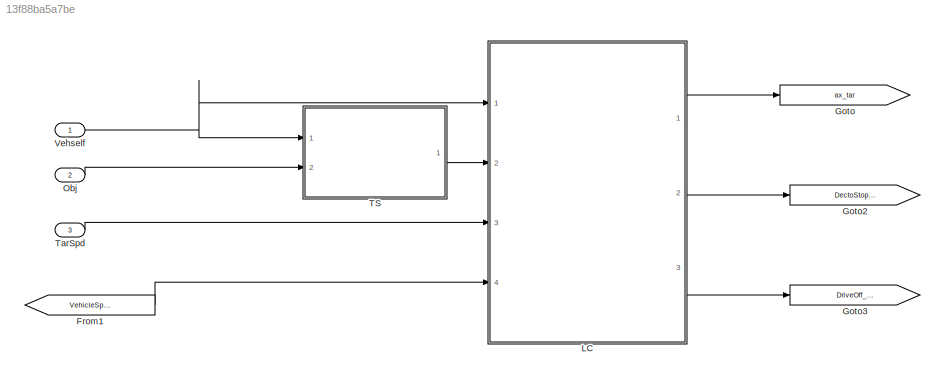
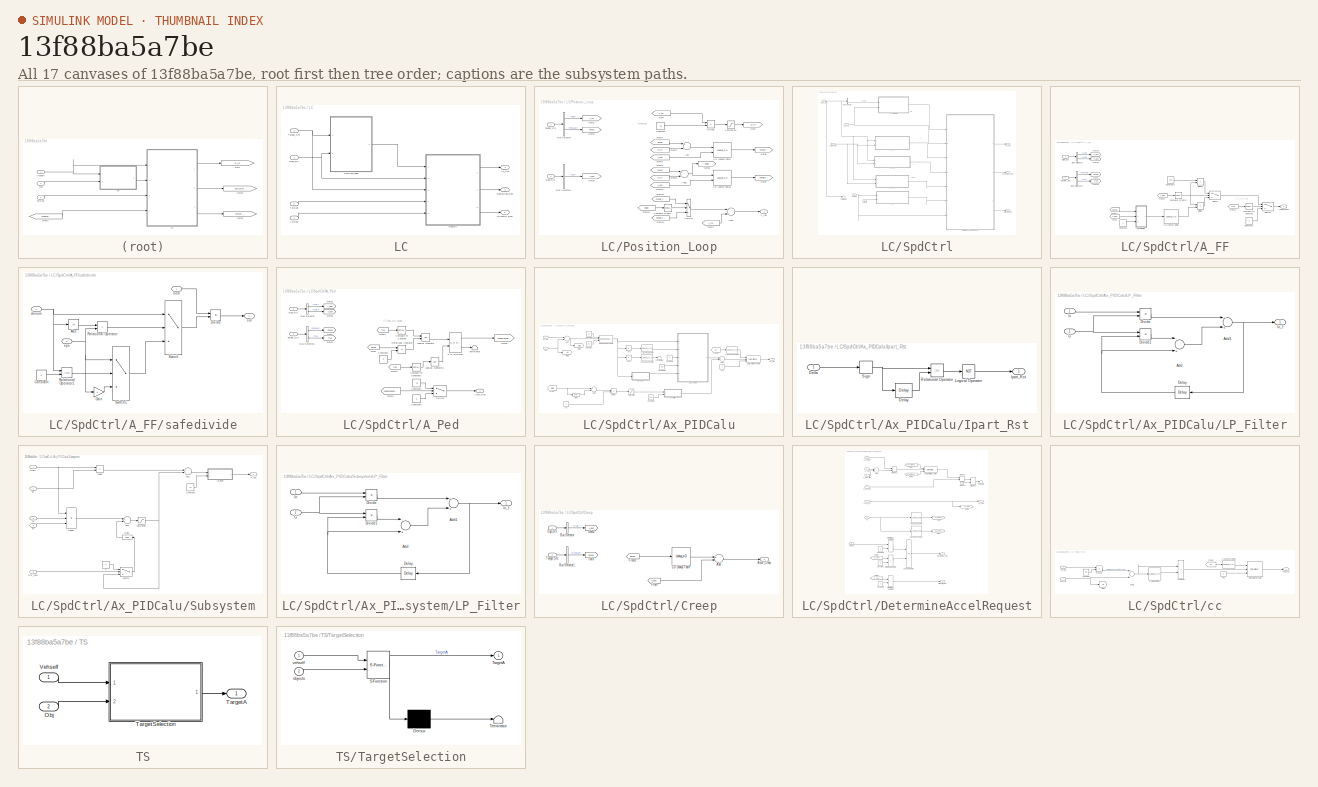
[diagram: thumbnail index - all 17 canvases of the model, root first then tree order]
MODEL slx_13f88ba5a7be
KIND model
CONFIG AbsTol = auto
CONFIG EnableMultiTasking = off
CONFIG FixedStep = auto
CONFIG MaxStep = auto
CONFIG MinStep = auto
CONFIG RelTol = 1e-3
CONFIG SampleTimeConstraint = Unconstrained
CONFIG Solver = VariableStepAuto
CONFIG SolverName = VariableStepAuto
CONFIG StartTime = 0.0
CONFIG StopTime = 10.0
BLOCK [From] From1
  GotoTag = VehicleSpeed
BLOCK [Goto] Goto
  GotoTag = ax_tar
BLOCK [Goto] Goto2
  GotoTag = DectoStop_Req
BLOCK [Goto] Goto3
  GotoTag = DriveOff_Req
BLOCK [SubSystem] LC
  Ports = [4, 3]
  RequestExecContextInheritance = off
BLOCK [Inport] LC/ActSpd
  IconDisplay = Port number
  Port = 4
BLOCK [Outport] LC/Ax_Tar
  IconDisplay = Port number
BLOCK [Outport] LC/DectoStop_Req
  IconDisplay = Port number
  Port = 2
BLOCK [Outport] LC/DriveOff_Req
  IconDisplay = Port number
  Port = 3
BLOCK [Inport] LC/Ego_Sts
  IconDisplay = Port number
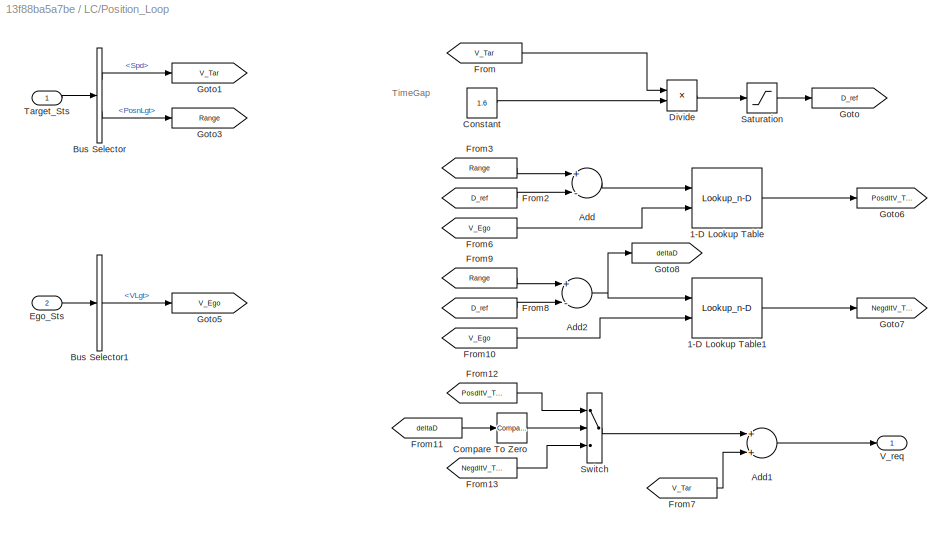
BLOCK [SubSystem] LC/Position_Loop
  Ports = [2, 1]
  RequestExecContextInheritance = off
BLOCK [Lookup_n-D] LC/Position_Loop/1-D Lookup Table
  BreakpointsForDimension1 = single([0,5,10,20,40,60,80,100]);
  BreakpointsForDimension2 = single([0,8.300000190734863]);
  ExtrapMethod = Clip
  InternalRulePriority = Speed
  Ports = [2, 1]
  RndMeth = Simplest
  Table = single(reshape([0,1,1.2,1.8,2.5,2.5,2.5,2.5,0,1,1.2,1.8,3,3,3,3],8,2));
  UseLastTableValue = on
BLOCK [Lookup_n-D] LC/Position_Loop/1-D Lookup Table1
  BreakpointsForDimension1 = single([-7 -5 0])
  BreakpointsForDimension2 = single([0 8.3])
  ExtrapMethod = Clip
  InternalRulePriority = Speed
  Ports = [2, 1]
  RndMeth = Simplest
  Table = single([-0.7 -0.7 0;-1.2 -1.2 0]')
  UseLastTableValue = on
BLOCK [Sum] LC/Position_Loop/Add
  InputSameDT = off
  Inputs = +-
  OutDataTypeStr = Inherit: Inherit via internal rule
  Ports = [2, 1]
  SaturateOnIntegerOverflow = off
BLOCK [Sum] LC/Position_Loop/Add1
  InputSameDT = off
  OutDataTypeStr = Inherit: Inherit via internal rule
  Ports = [2, 1]
  SaturateOnIntegerOverflow = off
BLOCK [Sum] LC/Position_Loop/Add2
  InputSameDT = off
  Inputs = +-
  OutDataTypeStr = Inherit: Inherit via internal rule
  Ports = [2, 1]
  SaturateOnIntegerOverflow = off
BLOCK [BusSelector] LC/Position_Loop/Bus Selector
  OutputAsBus = off
  OutputSignals = Spd,PosnLgt
  Ports = [1, 2]
BLOCK [BusSelector] LC/Position_Loop/Bus Selector1
  OutputAsBus = off
  OutputSignals = VLgt
  Ports = [1, 1]
BLOCK [Reference] LC/Position_Loop/Compare To Zero  REF=simulink/Logic and Bit
Operations/Compare
To Zero
  Ports = [1, 1]
  SourceBlock = simulink/Logic and Bit\nOperations/Compare\nTo Zero
  SourceProductBaseCode = SL
  SourceProductName = Simulink
  SourceType = Compare To Zero
BLOCK [Constant] LC/Position_Loop/Constant
  OutDataTypeStr = single
  Value = 1.6
BLOCK [Product] LC/Position_Loop/Divide
  InputSameDT = off
  Inputs = **
  OutDataTypeStr = Inherit: Inherit via internal rule
  Ports = [2, 1]
  RndMeth = Floor
  SaturateOnIntegerOverflow = off
BLOCK [Inport] LC/Position_Loop/Ego_Sts
  IconDisplay = Port number
  Port = 2
BLOCK [From] LC/Position_Loop/From
  GotoTag = V_Tar
BLOCK [From] LC/Position_Loop/From10
  GotoTag = V_Ego
BLOCK [From] LC/Position_Loop/From11
  GotoTag = deltaD
BLOCK [From] LC/Position_Loop/From12
  GotoTag = PosdltV_Tar
BLOCK [From] LC/Position_Loop/From13
  GotoTag = NegdltV_Tar
BLOCK [From] LC/Position_Loop/From2
  GotoTag = D_ref
BLOCK [From] LC/Position_Loop/From3
  GotoTag = Range
BLOCK [From] LC/Position_Loop/From6
  GotoTag = V_Ego
BLOCK [From] LC/Position_Loop/From7
  GotoTag = V_Tar
BLOCK [From] LC/Position_Loop/From8
  GotoTag = D_ref
BLOCK [From] LC/Position_Loop/From9
  GotoTag = Range
BLOCK [Goto] LC/Position_Loop/Goto
  GotoTag = D_ref
BLOCK [Goto] LC/Position_Loop/Goto1
  GotoTag = V_Tar
BLOCK [Goto] LC/Position_Loop/Goto3
  GotoTag = Range
BLOCK [Goto] LC/Position_Loop/Goto5
  GotoTag = V_Ego
BLOCK [Goto] LC/Position_Loop/Goto6
  GotoTag = PosdltV_Tar
BLOCK [Goto] LC/Position_Loop/Goto7
  GotoTag = NegdltV_Tar
BLOCK [Goto] LC/Position_Loop/Goto8
  GotoTag = deltaD
BLOCK [Saturate] LC/Position_Loop/Saturation
  InputPortMap = u0
  LowerLimit = 5
  Ports = [1, 1]
  UpperLimit = 100
BLOCK [Switch] LC/Position_Loop/Switch
  Criteria = u2 ~= 0
  InputSameDT = off
  SaturateOnIntegerOverflow = off
BLOCK [Inport] LC/Position_Loop/Target_Sts
  IconDisplay = Port number
BLOCK [Outport] LC/Position_Loop/V_req
  IconDisplay = Port number
BLOCK [SubSystem] LC/SpdCtrl
  Ports = [5, 3]
  RequestExecContextInheritance = off
BLOCK [SubSystem] LC/SpdCtrl/A_FF
  Ports = [2, 1]
  RequestExecContextInheritance = off
BLOCK [Lookup_n-D] LC/SpdCtrl/A_FF/1-D Lookup Table
  BreakpointsForDimension1 = single([0 0.8 4])
  InternalRulePriority = Speed
  NumberOfTableDimensions = 1
  Ports = [1, 1]
  RndMeth = Simplest
  Table = single([1.6 0.93 0])
BLOCK [Outport] LC/SpdCtrl/A_FF/A_lead_filted
  IconDisplay = Port number
BLOCK [BusSelector] LC/SpdCtrl/A_FF/Bus Selector
  OutputAsBus = off
  OutputSignals = ALgt,VLgt
  Ports = [1, 2]
BLOCK [BusSelector] LC/SpdCtrl/A_FF/Bus Selector1
  OutputAsBus = off
  OutputSignals = PosnLgt,Typ
  Ports = [1, 2]
BLOCK [Reference] LC/SpdCtrl/A_FF/Compare To Constant  REF=simulink/Logic and Bit
Operations/Compare
To Constant
  Ports = [1, 1]
  SourceBlock = simulink/Logic and Bit\nOperations/Compare\nTo Constant
  SourceProductBaseCode = SL
  SourceProductName = Simulink
  SourceType = Compare To Constant
BLOCK [Reference] LC/SpdCtrl/A_FF/Compare To Zero  REF=simulink/Logic and Bit
Operations/Compare
To Zero
  Ports = [1, 1]
  SourceBlock = simulink/Logic and Bit\nOperations/Compare\nTo Zero
  SourceProductBaseCode = SL
  SourceProductName = Simulink
  SourceType = Compare To Zero
BLOCK [Constant] LC/SpdCtrl/A_FF/Constant
  OutDataTypeStr = single
BLOCK [Constant] LC/SpdCtrl/A_FF/Constant1
  OutDataTypeStr = single
  Value = 0.24
BLOCK [Constant] LC/SpdCtrl/A_FF/Constant2
  OutDataTypeStr = single
  Value = 0
BLOCK [Product] LC/SpdCtrl/A_FF/Divide
  InputSameDT = off
  Inputs = **
  OutDataTypeStr = Inherit: Inherit via internal rule
  Ports = [2, 1]
  RndMeth = Floor
  SaturateOnIntegerOverflow = off
BLOCK [Product] LC/SpdCtrl/A_FF/Divide1
  InputSameDT = off
  Inputs = **
  OutDataTypeStr = Inherit: Inherit via internal rule
  Ports = [2, 1]
  RndMeth = Floor
  SaturateOnIntegerOverflow = off
BLOCK [Inport] LC/SpdCtrl/A_FF/Ego_Sts
  IconDisplay = Port number
BLOCK [From] LC/SpdCtrl/A_FF/From
  GotoTag = V_Ego
BLOCK [From] LC/SpdCtrl/A_FF/From1
  GotoTag = Range
BLOCK [From] LC/SpdCtrl/A_FF/From2
  GotoTag = A_Ego
BLOCK [From] LC/SpdCtrl/A_FF/From3
  GotoTag = Type
BLOCK [Goto] LC/SpdCtrl/A_FF/Goto
  GotoTag = Range
BLOCK [Goto] LC/SpdCtrl/A_FF/Goto2
  GotoTag = V_Ego
BLOCK [Goto] LC/SpdCtrl/A_FF/Goto3
  GotoTag = A_Ego
BLOCK [Goto] LC/SpdCtrl/A_FF/Goto4
  GotoTag = Type
BLOCK [Switch] LC/SpdCtrl/A_FF/Switch
  Criteria = u2 ~= 0
  InputSameDT = off
  SaturateOnIntegerOverflow = off
BLOCK [Switch] LC/SpdCtrl/A_FF/Switch1
  Criteria = u2 ~= 0
  InputSameDT = off
  SaturateOnIntegerOverflow = off
BLOCK [Inport] LC/SpdCtrl/A_FF/Target_Sts
  IconDisplay = Port number
  Port = 2
BLOCK [SubSystem] LC/SpdCtrl/A_FF/safedivide
  Ports = [3, 1]
  RequestExecContextInheritance = off
BLOCK [Abs] LC/SpdCtrl/A_FF/safedivide/Abs
  SaturateOnIntegerOverflow = off
BLOCK [Constant] LC/SpdCtrl/A_FF/safedivide/Constant
  OutDataTypeStr = single
BLOCK [Product] LC/SpdCtrl/A_FF/safedivide/Divide
  InputSameDT = off
  Inputs = */
  OutDataTypeStr = Inherit: Inherit via internal rule
  Ports = [2, 1]
  RndMeth = Floor
  SaturateOnIntegerOverflow = off
BLOCK [Gain] LC/SpdCtrl/A_FF/safedivide/Gain
  OutDataTypeStr = Inherit: Inherit via internal rule
  ParamDataTypeStr = single
  SaturateOnIntegerOverflow = off
BLOCK [RelationalOperator] LC/SpdCtrl/A_FF/safedivide/Relational Operator
  InputSameDT = off
  Operator = >
  OutDataTypeStr = boolean
  Ports = [2, 1]
  RndMeth = Simplest
BLOCK [RelationalOperator] LC/SpdCtrl/A_FF/safedivide/Relational Operator1
  InputSameDT = off
  OutDataTypeStr = boolean
  Ports = [2, 1]
  RndMeth = Simplest
BLOCK [Switch] LC/SpdCtrl/A_FF/safedivide/Switch
  Criteria = u2 > Threshold
  InputSameDT = off
  SaturateOnIntegerOverflow = off
BLOCK [Switch] LC/SpdCtrl/A_FF/safedivide/Switch1
  Criteria = u2 > Threshold
  InputSameDT = off
  SaturateOnIntegerOverflow = off
BLOCK [Inport] LC/SpdCtrl/A_FF/safedivide/denom
  IconDisplay = Port number
  Port = 2
BLOCK [Inport] LC/SpdCtrl/A_FF/safedivide/eps
  IconDisplay = Port number
  Port = 3
BLOCK [Inport] LC/SpdCtrl/A_FF/safedivide/nom
  IconDisplay = Port number
BLOCK [Outport] LC/SpdCtrl/A_FF/safedivide/sol
  IconDisplay = Port number
BLOCK [SubSystem] LC/SpdCtrl/A_Ped
  Ports = [2, 1]
  RequestExecContextInheritance = off
BLOCK [Outport] LC/SpdCtrl/A_Ped/Accel_Ped
  IconDisplay = Port number
BLOCK [BusSelector] LC/SpdCtrl/A_Ped/Bus Selector
  OutputAsBus = off
  OutputSignals = ALgt,VLgt
  Ports = [1, 2]
BLOCK [BusSelector] LC/SpdCtrl/A_Ped/Bus Selector1
  OutputAsBus = off
  OutputSignals = PosnLgt,Typ
  Ports = [1, 2]
BLOCK [Reference] LC/SpdCtrl/A_Ped/Compare To Constant  REF=simulink/Logic and Bit
Operations/Compare
To Constant
  Ports = [1, 1]
  SourceBlock = simulink/Logic and Bit\nOperations/Compare\nTo Constant
  SourceProductBaseCode = SL
  SourceProductName = Simulink
  SourceType = Compare To Constant
BLOCK [Reference] LC/SpdCtrl/A_Ped/Compare To Constant1  REF=simulink/Logic and Bit
Operations/Compare
To Constant
  Ports = [1, 1]
  SourceBlock = simulink/Logic and Bit\nOperations/Compare\nTo Constant
  SourceProductBaseCode = SL
  SourceProductName = Simulink
  SourceType = Compare To Constant
BLOCK [Constant] LC/SpdCtrl/A_Ped/Constant1
  OutDataTypeStr = single
  Value = 5
BLOCK [Constant] LC/SpdCtrl/A_Ped/Constant2
  OutDataTypeStr = single
  Value = -12
BLOCK [Constant] LC/SpdCtrl/A_Ped/Constant3
  OutDataTypeStr = single
  Value = 5
BLOCK [Inport] LC/SpdCtrl/A_Ped/Ego_Sts
  IconDisplay = Port number
BLOCK [From] LC/SpdCtrl/A_Ped/From
  GotoTag = Range
BLOCK [From] LC/SpdCtrl/A_Ped/From1
  GotoTag = Type
BLOCK [From] LC/SpdCtrl/A_Ped/From2
  GotoTag = MaxDeccelFlag
BLOCK [From] LC/SpdCtrl/A_Ped/From3
  GotoTag = Type
BLOCK [Goto] LC/SpdCtrl/A_Ped/Goto
  GotoTag = Range
BLOCK [Goto] LC/SpdCtrl/A_Ped/Goto2
  GotoTag = V_Ego
BLOCK [Goto] LC/SpdCtrl/A_Ped/Goto3
  GotoTag = A_Ego
BLOCK [Goto] LC/SpdCtrl/A_Ped/Goto4
  GotoTag = Type
BLOCK [Goto] LC/SpdCtrl/A_Ped/Goto5
  GotoTag = MaxDeccelFlag
BLOCK [Logic] LC/SpdCtrl/A_Ped/Logical Operator
  AllPortsSameDT = off
  OutDataTypeStr = boolean
  Ports = [2, 1]
BLOCK [Logic] LC/SpdCtrl/A_Ped/Logical Operator1
  AllPortsSameDT = off
  Operator = NOT
  OutDataTypeStr = boolean
  Ports = [1, 1]
BLOCK [RelationalOperator] LC/SpdCtrl/A_Ped/Relational Operator
  InputSameDT = off
  Operator = <=
  OutDataTypeStr = boolean
  Ports = [2, 1]
  RndMeth = Simplest
BLOCK [Reference] LC/SpdCtrl/A_Ped/S-R Flip-Flop  REF=simulink_extras/Flip Flops/S-R
Flip-Flop
  Ports = [2, 2]
  SourceBlock = simulink_extras/Flip Flops/S-R\nFlip-Flop
  SourceProductBaseCode = SL
  SourceProductName = Simulink
  SourceType = SRFlipFlop
BLOCK [Switch] LC/SpdCtrl/A_Ped/Switch
  Criteria = u2 ~= 0
  InputSameDT = off
  SaturateOnIntegerOverflow = off
BLOCK [Inport] LC/SpdCtrl/A_Ped/Target_Sts
  IconDisplay = Port number
  Port = 2
BLOCK [Terminator] LC/SpdCtrl/A_Ped/Terminator
BLOCK [Inport] LC/SpdCtrl/ActSpd
  IconDisplay = Port number
  Port = 5
BLOCK [SubSystem] LC/SpdCtrl/Ax_PIDCalu
  Ports = [2, 1]
  RequestExecContextInheritance = off
BLOCK [Lookup_n-D] LC/SpdCtrl/Ax_PIDCalu/1-D Lookup Table
  BreakpointsForDimension1 = [0 1 2 3 4 5]
  ExtrapMethod = Clip
  InternalRulePriority = Speed
  NumberOfTableDimensions = 1
  Ports = [1, 1]
  RndMeth = Simplest
  Table = [0.4 0.6 1.0 1.8 2 2]
  UseLastTableValue = on
BLOCK [Lookup_n-D] LC/SpdCtrl/Ax_PIDCalu/1-D Lookup Table1
  BreakpointsForDimension1 = [0 2 5]
  ExtrapMethod = Clip
  InternalRulePriority = Speed
  NumberOfTableDimensions = 1
  Ports = [1, 1]
  RndMeth = Simplest
  Table = [0.1 0.2 0.4]
  UseLastTableValue = on
BLOCK [Lookup_n-D] LC/SpdCtrl/Ax_PIDCalu/1-D Lookup Table2
  BreakpointsForDimension1 = [0 15]
  ExtrapMethod = Clip
  InternalRulePriority = Speed
  NumberOfTableDimensions = 1
  Ports = [1, 1]
  RndMeth = Simplest
  Table = [2 1.7]
  UseLastTableValue = on
BLOCK [Abs] LC/SpdCtrl/Ax_PIDCalu/Abs
  SaturateOnIntegerOverflow = off
BLOCK [Abs] LC/SpdCtrl/Ax_PIDCalu/Abs1
  SaturateOnIntegerOverflow = off
BLOCK [Sum] LC/SpdCtrl/Ax_PIDCalu/Add
  InputSameDT = off
  Inputs = +-
  OutDataTypeStr = Inherit: Inherit via internal rule
  Ports = [2, 1]
  SaturateOnIntegerOverflow = off
BLOCK [Sum] LC/SpdCtrl/Ax_PIDCalu/Add1
  InputSameDT = off
  OutDataTypeStr = Inherit: Inherit via internal rule
  Ports = [2, 1]
  SaturateOnIntegerOverflow = off
BLOCK [Sum] LC/SpdCtrl/Ax_PIDCalu/Add2
  InputSameDT = off
  Inputs = +-
  OutDataTypeStr = Inherit: Inherit via internal rule
  Ports = [2, 1]
  SaturateOnIntegerOverflow = off
BLOCK [Outport] LC/SpdCtrl/Ax_PIDCalu/Ax_PID
  IconDisplay = Port number
BLOCK [Constant] LC/SpdCtrl/Ax_PIDCalu/Constant
  OutDataTypeStr = single
  Value = -0.1
BLOCK [Constant] LC/SpdCtrl/Ax_PIDCalu/Constant1
  OutDataTypeStr = single
  Value = 0.03
BLOCK [Constant] LC/SpdCtrl/Ax_PIDCalu/Constant2
  OutDataTypeStr = single
  Value = 0.1
BLOCK [Constant] LC/SpdCtrl/Ax_PIDCalu/Constant3
  OutDataTypeStr = single
  Value = 0.02
BLOCK [Constant] LC/SpdCtrl/Ax_PIDCalu/Constant4
  OutDataTypeStr = single
  Value = 0
BLOCK [Reference] LC/SpdCtrl/Ax_PIDCalu/Dead Zone Dynamic  REF=simulink/Discontinuities/Dead Zone
Dynamic
  Ports = [3, 1]
  SourceBlock = simulink/Discontinuities/Dead Zone\nDynamic
  SourceProductBaseCode = SL
  SourceProductName = Simulink
  SourceType = Dead Zone Dynamic
BLOCK [Delay] LC/SpdCtrl/Ax_PIDCalu/Delay
  DelayLength = 10
  InitialCondition = 0
  InputPortMap = u0
  Ports = [1, 1]
BLOCK [Product] LC/SpdCtrl/Ax_PIDCalu/Divide
  InputSameDT = off
  Inputs = **
  OutDataTypeStr = Inherit: Inherit via internal rule
  Ports = [2, 1]
  RndMeth = Floor
  SaturateOnIntegerOverflow = off
BLOCK [From] LC/SpdCtrl/Ax_PIDCalu/From
  GotoTag = delta
BLOCK [From] LC/SpdCtrl/Ax_PIDCalu/From1
  GotoTag = Vx
BLOCK [Goto] LC/SpdCtrl/Ax_PIDCalu/Goto
  GotoTag = delta
BLOCK [Goto] LC/SpdCtrl/Ax_PIDCalu/Goto1
  GotoTag = Vx
BLOCK [SubSystem] LC/SpdCtrl/Ax_PIDCalu/Ipart_Rst
  Ports = [1, 1]
  RequestExecContextInheritance = off
BLOCK [Delay] LC/SpdCtrl/Ax_PIDCalu/Ipart_Rst/Delay
  DelayLength = 1
  InitialCondition = 0
  InputPortMap = u0
  Ports = [1, 1]
BLOCK [Inport] LC/SpdCtrl/Ax_PIDCalu/Ipart_Rst/Delta
  IconDisplay = Port number
BLOCK [Outport] LC/SpdCtrl/Ax_PIDCalu/Ipart_Rst/Ipart_Rst
  IconDisplay = Port number
BLOCK [Logic] LC/SpdCtrl/Ax_PIDCalu/Ipart_Rst/Logical Operator
  AllPortsSameDT = off
  Operator = NOT
  OutDataTypeStr = boolean
  Ports = [1, 1]
BLOCK [RelationalOperator] LC/SpdCtrl/Ax_PIDCalu/Ipart_Rst/Relational Operator
  InputSameDT = off
  Operator = ==
  OutDataTypeStr = boolean
  Ports = [2, 1]
  RndMeth = Simplest
BLOCK [Signum] LC/SpdCtrl/Ax_PIDCalu/Ipart_Rst/Sign
BLOCK [SubSystem] LC/SpdCtrl/Ax_PIDCalu/LP_Filter
  Ports = [2, 1]
  RequestExecContextInheritance = off
BLOCK [Sum] LC/SpdCtrl/Ax_PIDCalu/LP_Filter/Add
  InputSameDT = off
  Inputs = -+
  OutDataTypeStr = Inherit: Inherit via internal rule
  Ports = [2, 1]
  SaturateOnIntegerOverflow = off
BLOCK [Sum] LC/SpdCtrl/Ax_PIDCalu/LP_Filter/Add1
  InputSameDT = off
  OutDataTypeStr = Inherit: Inherit via internal rule
  Ports = [2, 1]
  SaturateOnIntegerOverflow = off
BLOCK [Delay] LC/SpdCtrl/Ax_PIDCalu/LP_Filter/Delay
  DelayLength = 1
  InitialCondition = 0
  InputPortMap = u0
  Ports = [1, 1]
BLOCK [Product] LC/SpdCtrl/Ax_PIDCalu/LP_Filter/Divide
  InputSameDT = off
  Inputs = **
  OutDataTypeStr = Inherit: Inherit via internal rule
  Ports = [2, 1]
  RndMeth = Floor
  SaturateOnIntegerOverflow = off
BLOCK [Product] LC/SpdCtrl/Ax_PIDCalu/LP_Filter/Divide1
  InputSameDT = off
  Inputs = **
  OutDataTypeStr = Inherit: Inherit via internal rule
  Ports = [2, 1]
  RndMeth = Floor
  SaturateOnIntegerOverflow = off
BLOCK [Inport] LC/SpdCtrl/Ax_PIDCalu/LP_Filter/G
  IconDisplay = Port number
  Port = 2
BLOCK [Inport] LC/SpdCtrl/Ax_PIDCalu/LP_Filter/In
  IconDisplay = Port number
BLOCK [Outport] LC/SpdCtrl/Ax_PIDCalu/LP_Filter/In_f
  IconDisplay = Port number
BLOCK [Saturate] LC/SpdCtrl/Ax_PIDCalu/Saturation
  InputPortMap = u0
  Ports = [1, 1]
BLOCK [Reference] LC/SpdCtrl/Ax_PIDCalu/Saturation Dynamic  REF=simulink/Discontinuities/Saturation
Dynamic
  Ports = [3, 1]
  SourceBlock = simulink/Discontinuities/Saturation\nDynamic
  SourceProductBaseCode = SL
  SourceProductName = Simulink
  SourceType = Saturation Dynamic
BLOCK [SubSystem] LC/SpdCtrl/Ax_PIDCalu/Subsystem
  Ports = [5, 1]
  RequestExecContextInheritance = off
BLOCK [Sum] LC/SpdCtrl/Ax_PIDCalu/Subsystem/Add1
  InputSameDT = off
  OutDataTypeStr = Inherit: Inherit via internal rule
  Ports = [2, 1]
  SaturateOnIntegerOverflow = off
BLOCK [Sum] LC/SpdCtrl/Ax_PIDCalu/Subsystem/Add2
  InputSameDT = off
  OutDataTypeStr = Inherit: Inherit via internal rule
  Ports = [2, 1]
  SaturateOnIntegerOverflow = off
BLOCK [Constant] LC/SpdCtrl/Ax_PIDCalu/Subsystem/Constant
  OutDataTypeStr = single
  Value = 0.1
BLOCK [Delay] LC/SpdCtrl/Ax_PIDCalu/Subsystem/Delay
  DelayLength = 1
  InitialCondition = 0
  InputPortMap = u0
  Ports = [1, 1]
BLOCK [Inport] LC/SpdCtrl/Ax_PIDCalu/Subsystem/Delta
  IconDisplay = Port number
BLOCK [Product] LC/SpdCtrl/Ax_PIDCalu/Subsystem/Divide
  InputSameDT = off
  Inputs = **
  OutDataTypeStr = Inherit: Inherit via internal rule
  Ports = [2, 1]
  RndMeth = Floor
  SaturateOnIntegerOverflow = off
BLOCK [Product] LC/SpdCtrl/Ax_PIDCalu/Subsystem/Divide1
  InputSameDT = off
  Inputs = ***
  OutDataTypeStr = Inherit: Inherit via internal rule
  Ports = [3, 1]
  RndMeth = Floor
  SaturateOnIntegerOverflow = off
BLOCK [Inport] LC/SpdCtrl/Ax_PIDCalu/Subsystem/Ki
  IconDisplay = Port number
  Port = 3
BLOCK [Inport] LC/SpdCtrl/Ax_PIDCalu/Subsystem/Kp
  IconDisplay = Port number
  Port = 2
BLOCK [SubSystem] LC/SpdCtrl/Ax_PIDCalu/Subsystem/LP_Filter
  Ports = [2, 1]
  RequestExecContextInheritance = off
BLOCK [Sum] LC/SpdCtrl/Ax_PIDCalu/Subsystem/LP_Filter/Add
  InputSameDT = off
  Inputs = -+
  OutDataTypeStr = Inherit: Inherit via internal rule
  Ports = [2, 1]
  SaturateOnIntegerOverflow = off
BLOCK [Sum] LC/SpdCtrl/Ax_PIDCalu/Subsystem/LP_Filter/Add1
  InputSameDT = off
  OutDataTypeStr = Inherit: Inherit via internal rule
  Ports = [2, 1]
  SaturateOnIntegerOverflow = off
BLOCK [Delay] LC/SpdCtrl/Ax_PIDCalu/Subsystem/LP_Filter/Delay
  DelayLength = 1
  InitialCondition = 0
  InputPortMap = u0
  Ports = [1, 1]
BLOCK [Product] LC/SpdCtrl/Ax_PIDCalu/Subsystem/LP_Filter/Divide
  InputSameDT = off
  Inputs = **
  OutDataTypeStr = Inherit: Inherit via internal rule
  Ports = [2, 1]
  RndMeth = Floor
  SaturateOnIntegerOverflow = off
BLOCK [Product] LC/SpdCtrl/Ax_PIDCalu/Subsystem/LP_Filter/Divide1
  InputSameDT = off
  Inputs = **
  OutDataTypeStr = Inherit: Inherit via internal rule
  Ports = [2, 1]
  RndMeth = Floor
  SaturateOnIntegerOverflow = off
BLOCK [Inport] LC/SpdCtrl/Ax_PIDCalu/Subsystem/LP_Filter/G
  IconDisplay = Port number
  Port = 2
BLOCK [Inport] LC/SpdCtrl/Ax_PIDCalu/Subsystem/LP_Filter/In
  IconDisplay = Port number
BLOCK [Outport] LC/SpdCtrl/Ax_PIDCalu/Subsystem/LP_Filter/In_f
  IconDisplay = Port number
BLOCK [Outport] LC/SpdCtrl/Ax_PIDCalu/Subsystem/PI_out
  IconDisplay = Port number
BLOCK [Inport] LC/SpdCtrl/Ax_PIDCalu/Subsystem/Rst_Ipart
  IconDisplay = Port number
  Port = 5
BLOCK [Saturate] LC/SpdCtrl/Ax_PIDCalu/Subsystem/Saturation
  InputPortMap = u0
  Ports = [1, 1]
BLOCK [Switch] LC/SpdCtrl/Ax_PIDCalu/Subsystem/Switch
  Criteria = u2 > Threshold
  InputSameDT = off
  SaturateOnIntegerOverflow = off
BLOCK [Constant] LC/SpdCtrl/Ax_PIDCalu/Subsystem/T
  OutDataTypeStr = single
  Value = 0
BLOCK [Inport] LC/SpdCtrl/Ax_PIDCalu/Subsystem/TS
  IconDisplay = Port number
  Port = 4
BLOCK [Terminator] LC/SpdCtrl/Ax_PIDCalu/Terminator
BLOCK [Inport] LC/SpdCtrl/Ax_PIDCalu/Vx
  IconDisplay = Port number
BLOCK [Inport] LC/SpdCtrl/Ax_PIDCalu/Vx_Tar
  IconDisplay = Port number
  Port = 2
BLOCK [Constant] LC/SpdCtrl/Ax_PIDCalu/kd
  OutDataTypeStr = single
  Value = 2
BLOCK [Constant] LC/SpdCtrl/Ax_PIDCalu/kd1
  OutDataTypeStr = single
  Value = -2
BLOCK [Outport] LC/SpdCtrl/Ax_Tar
  IconDisplay = Port number
BLOCK [BusSelector] LC/SpdCtrl/Bus Selector
  OutputAsBus = off
  OutputSignals = VLgt
  Ports = [1, 1]
BLOCK [SubSystem] LC/SpdCtrl/Creep
  Ports = [2, 1]
  RequestExecContextInheritance = off
BLOCK [Lookup_n-D] LC/SpdCtrl/Creep/1-D Lookup Table
  BreakpointsForDimension1 = [2.5 3 4 6 7 11 16 26]
  InternalRulePriority = Speed
  NumberOfTableDimensions = 1
  Ports = [1, 1]
  RndMeth = Simplest
  Table = [-5 -1 0 0.5 0.7 1.1 2 4]
BLOCK [Outport] LC/SpdCtrl/Creep/Accel_Creep
  IconDisplay = Port number
BLOCK [Sum] LC/SpdCtrl/Creep/Add
  InputSameDT = off
  Inputs = +-
  OutDataTypeStr = Inherit: Inherit via internal rule
  Ports = [2, 1]
  SaturateOnIntegerOverflow = off
BLOCK [BusSelector] LC/SpdCtrl/Creep/Bus Selector
  OutputAsBus = off
  OutputSignals = VLgt
  Ports = [1, 1]
BLOCK [BusSelector] LC/SpdCtrl/Creep/Bus Selector1
  OutputAsBus = off
  OutputSignals = PosnLgt
  Ports = [1, 1]
BLOCK [Inport] LC/SpdCtrl/Creep/Ego_Sts
  IconDisplay = Port number
BLOCK [From] LC/SpdCtrl/Creep/From
  GotoTag = V_Ego
BLOCK [From] LC/SpdCtrl/Creep/From1
  GotoTag = Range
BLOCK [Goto] LC/SpdCtrl/Creep/Goto
  GotoTag = Range
BLOCK [Goto] LC/SpdCtrl/Creep/Goto2
  GotoTag = V_Ego
BLOCK [Inport] LC/SpdCtrl/Creep/Target_Sts
  IconDisplay = Port number
  Port = 2
BLOCK [Outport] LC/SpdCtrl/DectoStop_Req
  IconDisplay = Port number
  Port = 2
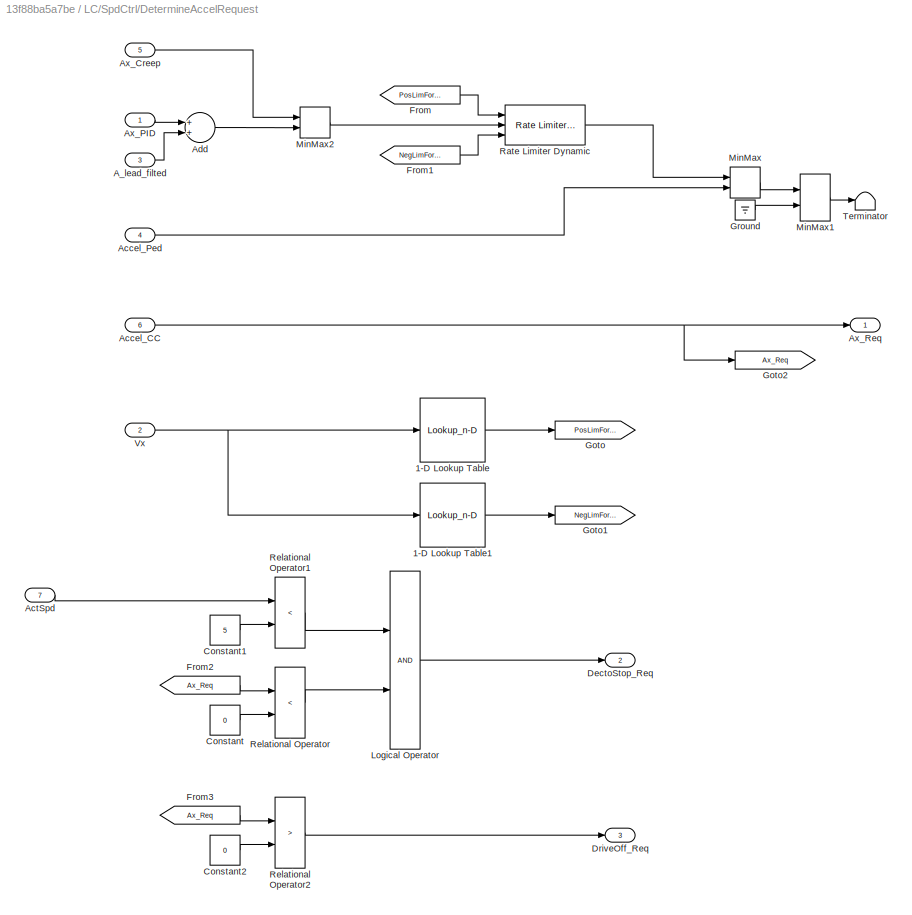
BLOCK [SubSystem] LC/SpdCtrl/DetermineAccelRequest
  Ports = [7, 3]
  RequestExecContextInheritance = off
BLOCK [Lookup_n-D] LC/SpdCtrl/DetermineAccelRequest/1-D Lookup Table
  BreakpointsForDimension1 = single([0 15 40 80 100 120 160 200]/3.6)
  InternalRulePriority = Speed
  NumberOfTableDimensions = 1
  Ports = [1, 1]
  RndMeth = Simplest
  Table = single([2 1.5 1 1 1 1 1 1 ])
BLOCK [Lookup_n-D] LC/SpdCtrl/DetermineAccelRequest/1-D Lookup Table1
  BreakpointsForDimension1 = single([0 15 40 80 100 120 160 200]/3.6)
  InternalRulePriority = Speed
  NumberOfTableDimensions = 1
  Ports = [1, 1]
  RndMeth = Simplest
  Table = single([2 1.5 1 1 1 1 1 1 ]*-1)
BLOCK [Inport] LC/SpdCtrl/DetermineAccelRequest/A_lead_filted
  IconDisplay = Port number
  Port = 3
BLOCK [Inport] LC/SpdCtrl/DetermineAccelRequest/Accel_CC
  IconDisplay = Port number
  Port = 6
BLOCK [Inport] LC/SpdCtrl/DetermineAccelRequest/Accel_Ped
  IconDisplay = Port number
  Port = 4
BLOCK [Inport] LC/SpdCtrl/DetermineAccelRequest/ActSpd
  IconDisplay = Port number
  Port = 7
BLOCK [Sum] LC/SpdCtrl/DetermineAccelRequest/Add
  InputSameDT = off
  OutDataTypeStr = Inherit: Inherit via internal rule
  Ports = [2, 1]
  SaturateOnIntegerOverflow = off
BLOCK [Inport] LC/SpdCtrl/DetermineAccelRequest/Ax_Creep
  IconDisplay = Port number
  Port = 5
BLOCK [Inport] LC/SpdCtrl/DetermineAccelRequest/Ax_PID
  IconDisplay = Port number
BLOCK [Outport] LC/SpdCtrl/DetermineAccelRequest/Ax_Req
  IconDisplay = Port number
BLOCK [Constant] LC/SpdCtrl/DetermineAccelRequest/Constant
  Value = 0
BLOCK [Constant] LC/SpdCtrl/DetermineAccelRequest/Constant1
  Value = 5
BLOCK [Constant] LC/SpdCtrl/DetermineAccelRequest/Constant2
  Value = 0
BLOCK [Outport] LC/SpdCtrl/DetermineAccelRequest/DectoStop_Req
  IconDisplay = Port number
  Port = 2
BLOCK [Outport] LC/SpdCtrl/DetermineAccelRequest/DriveOff_Req
  IconDisplay = Port number
  Port = 3
BLOCK [From] LC/SpdCtrl/DetermineAccelRequest/From
  GotoTag = PosLimForJerk
BLOCK [From] LC/SpdCtrl/DetermineAccelRequest/From1
  GotoTag = NegLimForJerk
BLOCK [From] LC/SpdCtrl/DetermineAccelRequest/From2
  GotoTag = Ax_Req
BLOCK [From] LC/SpdCtrl/DetermineAccelRequest/From3
  GotoTag = Ax_Req
BLOCK [Goto] LC/SpdCtrl/DetermineAccelRequest/Goto
  GotoTag = PosLimForJerk
BLOCK [Goto] LC/SpdCtrl/DetermineAccelRequest/Goto1
  GotoTag = NegLimForJerk
BLOCK [Goto] LC/SpdCtrl/DetermineAccelRequest/Goto2
  GotoTag = Ax_Req
BLOCK [Ground] LC/SpdCtrl/DetermineAccelRequest/Ground
BLOCK [Logic] LC/SpdCtrl/DetermineAccelRequest/Logical Operator
  AllPortsSameDT = off
  OutDataTypeStr = boolean
  Ports = [2, 1]
BLOCK [MinMax] LC/SpdCtrl/DetermineAccelRequest/MinMax
  InputSameDT = off
  Inputs = 2
  Ports = [2, 1]
  SaturateOnIntegerOverflow = off
BLOCK [MinMax] LC/SpdCtrl/DetermineAccelRequest/MinMax1
  InputSameDT = off
  Inputs = 2
  Ports = [2, 1]
  SaturateOnIntegerOverflow = off
BLOCK [MinMax] LC/SpdCtrl/DetermineAccelRequest/MinMax2
  Function = max
  InputSameDT = off
  Inputs = 2
  Ports = [2, 1]
  SaturateOnIntegerOverflow = off
BLOCK [Reference] LC/SpdCtrl/DetermineAccelRequest/Rate Limiter Dynamic  REF=simulink/Discontinuities/Rate Limiter
Dynamic
  Ports = [3, 1]
  SourceBlock = simulink/Discontinuities/Rate Limiter\nDynamic
  SourceProductBaseCode = SL
  SourceProductName = Simulink
  SourceType = Rate Limiter Dynamic
BLOCK [RelationalOperator] LC/SpdCtrl/DetermineAccelRequest/Relational Operator
  InputSameDT = off
  Operator = <
  OutDataTypeStr = boolean
  Ports = [2, 1]
  RndMeth = Simplest
BLOCK [RelationalOperator] LC/SpdCtrl/DetermineAccelRequest/Relational Operator1
  InputSameDT = off
  Operator = <
  OutDataTypeStr = boolean
  Ports = [2, 1]
  RndMeth = Simplest
BLOCK [RelationalOperator] LC/SpdCtrl/DetermineAccelRequest/Relational Operator2
  InputSameDT = off
  Operator = >
  OutDataTypeStr = boolean
  Ports = [2, 1]
  RndMeth = Simplest
BLOCK [Terminator] LC/SpdCtrl/DetermineAccelRequest/Terminator
BLOCK [Inport] LC/SpdCtrl/DetermineAccelRequest/Vx
  IconDisplay = Port number
  Port = 2
BLOCK [Outport] LC/SpdCtrl/DriveOff_Req
  IconDisplay = Port number
  Port = 3
BLOCK [Inport] LC/SpdCtrl/Ego_Sts
  IconDisplay = Port number
  Port = 2
BLOCK [Inport] LC/SpdCtrl/TarSpd
  IconDisplay = Port number
  Port = 4
BLOCK [Inport] LC/SpdCtrl/Target_Sts
  IconDisplay = Port number
  Port = 3
BLOCK [Terminator] LC/SpdCtrl/Terminator
BLOCK [Inport] LC/SpdCtrl/Vx_Tar
  IconDisplay = Port number
  OutDataTypeStr = single
BLOCK [SubSystem] LC/SpdCtrl/cc
  Ports = [2, 1]
  RequestExecContextInheritance = off
BLOCK [Lookup_n-D] LC/SpdCtrl/cc/1-D Lookup Table2
  BreakpointsForDimension1 = [0 15]
  ExtrapMethod = Clip
  InternalRulePriority = Speed
  NumberOfTableDimensions = 1
  Ports = [1, 1]
  RndMeth = Simplest
  Table = [2 1.7]
  UseLastTableValue = on
BLOCK [Outport] LC/SpdCtrl/cc/Accel_CC
  IconDisplay = Port number
BLOCK [Constant] LC/SpdCtrl/cc/Constant2
  OutDataTypeStr = single
  Value = 3.6
BLOCK [Inport] LC/SpdCtrl/cc/Ego_Sts
  IconDisplay = Port number
BLOCK [From] LC/SpdCtrl/cc/From1
  GotoTag = Vx
BLOCK [Goto] LC/SpdCtrl/cc/Goto
  GotoTag = Vx
BLOCK [Product] LC/SpdCtrl/cc/Product
  InputSameDT = off
  OutDataTypeStr = Inherit: Inherit via internal rule
  Ports = [2, 1]
  SaturateOnIntegerOverflow = off
BLOCK [Product] LC/SpdCtrl/cc/Product1
  InputSameDT = off
  OutDataTypeStr = Inherit: Inherit via internal rule
  Ports = [2, 1]
  SaturateOnIntegerOverflow = off
BLOCK [Reference] LC/SpdCtrl/cc/Saturation Dynamic  REF=simulink/Discontinuities/Saturation
Dynamic
  Ports = [3, 1]
  SourceBlock = simulink/Discontinuities/Saturation\nDynamic
  SourceProductBaseCode = SL
  SourceProductName = Simulink
  SourceType = Saturation Dynamic
BLOCK [Sum] LC/SpdCtrl/cc/Sum2
  Description = Sum block of dSPACE TargetLink.\n\nOutput signal is equal to the sum of the input signals.\nThe list of signs is specified according to conventions for Simulink Sum blocks.
  InputSameDT = off
  Inputs = +-
  OutDataTypeStr = Inherit: Inherit via internal rule
  OutMax = 20
  OutMin = -20
  Ports = [2, 1]
  SaturateOnIntegerOverflow = off
  Tag = struct('comment',struct('text','','placement',1),'logdata',struct('maxnumvals',4096,'plotchannels',[],'stepsize',0,'downsampling',1,'loggingmode',3,'channels',1),'output',struct('width',1,'name','$S_$B','unit','','type','Float32','offset',0,'max',NaN,'min',NaN,'freeze',1,'lsb',1,'arb',0,'class','default','address','','description','','autoscalingmode',1,'lowerheadroom',1,'upperheadroom',1,'headroo...<+87ch>
BLOCK [Inport] LC/SpdCtrl/cc/TarSpd
  IconDisplay = Port number
  Port = 2
BLOCK [Lookup_n-D] LC/SpdCtrl/cc/Z_GainComfort
  BreakpointsForDimension1 = single([ -10 -3 -1 3 10 ])
  BreakpointsForDimension1DataTypeStr = Inherit: Inherit from 'Breakpoint data'
  InputSameDT = off
  NumberOfTableDimensions = 1
  OutDataTypeStr = Inherit: Inherit from 'Table data'
  Ports = [1, 1]
  RndMeth = Simplest
  Table = single([ 0.1 0.1 0.075 0.075 0.075 ])
  TableDataTypeStr = Inherit: Inherit from 'Table data'
BLOCK [Constant] LC/SpdCtrl/cc/kd1
  OutDataTypeStr = single
  Value = -2
BLOCK [Inport] LC/TarSpd
  IconDisplay = Port number
  Port = 3
BLOCK [Inport] LC/Target_Sts
  IconDisplay = Port number
  Port = 2
BLOCK [Inport] Obj
  BusOutputAsStruct = on
  IconDisplay = Port number
  OutDataTypeStr = Bus:ObjGroup1Vcc
  Port = 2
  PortDimensions = 32
BLOCK [SubSystem] TS
  Ports = [2, 1]
  RequestExecContextInheritance = off
BLOCK [Inport] TS/Obj
  IconDisplay = Port number
  OutDataTypeStr = Bus:ObjGroup1Vcc
  Port = 2
BLOCK [Outport] TS/TargetA
  IconDisplay = Port number
  OutDataTypeStr = Bus: TargetADZJ
BLOCK [SubSystem] TS/TargetSelection
  ErrorFcn = Stateflow.Translate.translate
  PermitHierarchicalResolution = ExplicitOnly
  Ports = [2, 1]
  RequestExecContextInheritance = off
  SFBlockType = MATLAB Function
  TreatAsAtomicUnit = on
BLOCK [Demux] TS/TargetSelection/ Demux 
  Outputs = 1
  Ports = [1, 1]
BLOCK [S-Function] TS/TargetSelection/ SFunction 
  EnableBusSupport = off
  FunctionName = sf_sfun
  PortCounts = [2 2]
  Ports = [2, 2]
  SFcnIsStateOwnerBlock = off
  SFunctionDeploymentMode = off
  Tag = Stateflow S-Function 2
BLOCK [Terminator] TS/TargetSelection/ Terminator 
BLOCK [Outport] TS/TargetSelection/TargetA
  IconDisplay = Port number
BLOCK [Inport] TS/TargetSelection/objects
  IconDisplay = Port number
  Port = 2
BLOCK [Inport] TS/TargetSelection/vehself
  IconDisplay = Port number
BLOCK [Inport] TS/Vehself
  IconDisplay = Port number
  OutDataTypeStr = Bus:VehSelf1Vcc
BLOCK [Inport] TarSpd
  IconDisplay = Port number
  Port = 3
BLOCK [Inport] Vehself
  IconDisplay = Port number
  OutDataTypeStr = Bus:VehSelf1Vcc
ANNOTATION LC/Position_Loop: TimeGap
ANNOTATION LC/SpdCtrl: PID
ANNOTATION LC/SpdCtrl: creep
ANNOTATION LC/SpdCtrl: 前馈
ANNOTATION LC/SpdCtrl: 行人
ANNOTATION LC/SpdCtrl/A_FF: 行人加速度为0
ANNOTATION LC/SpdCtrl/A_Ped: 行人<5m full brake
LINE From1:1 -> LC:4
LINE LC/ActSpd:1 -> LC/SpdCtrl:5
NET LC/Ego_Sts:1 -> LC/Position_Loop:2, LC/SpdCtrl:2
LINE LC/Position_Loop/1-D Lookup Table1:1 -> LC/Position_Loop/Goto7:1
LINE LC/Position_Loop/1-D Lookup Table:1 -> LC/Position_Loop/Goto6:1
LINE LC/Position_Loop/Add1:1 -> LC/Position_Loop/V_req:1
NET LC/Position_Loop/Add2:1 -> LC/Position_Loop/1-D Lookup Table1:1, LC/Position_Loop/Goto8:1
LINE LC/Position_Loop/Add:1 -> LC/Position_Loop/1-D Lookup Table:1
LINE LC/Position_Loop/Bus Selector1:1 -> LC/Position_Loop/Goto5:1
LINE LC/Position_Loop/Bus Selector:1 -> LC/Position_Loop/Goto1:1
LINE LC/Position_Loop/Bus Selector:2 -> LC/Position_Loop/Goto3:1
LINE LC/Position_Loop/Compare To Zero:1 -> LC/Position_Loop/Switch:2
LINE LC/Position_Loop/Constant:1 -> LC/Position_Loop/Divide:2
LINE LC/Position_Loop/Divide:1 -> LC/Position_Loop/Saturation:1
LINE LC/Position_Loop/Ego_Sts:1 -> LC/Position_Loop/Bus Selector1:1
LINE LC/Position_Loop/From10:1 -> LC/Position_Loop/1-D Lookup Table1:2
LINE LC/Position_Loop/From11:1 -> LC/Position_Loop/Compare To Zero:1
LINE LC/Position_Loop/From12:1 -> LC/Position_Loop/Switch:1
LINE LC/Position_Loop/From13:1 -> LC/Position_Loop/Switch:3
LINE LC/Position_Loop/From2:1 -> LC/Position_Loop/Add:2
LINE LC/Position_Loop/From3:1 -> LC/Position_Loop/Add:1
LINE LC/Position_Loop/From6:1 -> LC/Position_Loop/1-D Lookup Table:2
LINE LC/Position_Loop/From7:1 -> LC/Position_Loop/Add1:2
LINE LC/Position_Loop/From8:1 -> LC/Position_Loop/Add2:2
LINE LC/Position_Loop/From9:1 -> LC/Position_Loop/Add2:1
LINE LC/Position_Loop/From:1 -> LC/Position_Loop/Divide:1
LINE LC/Position_Loop/Saturation:1 -> LC/Position_Loop/Goto:1
LINE LC/Position_Loop/Switch:1 -> LC/Position_Loop/Add1:1
LINE LC/Position_Loop/Target_Sts:1 -> LC/Position_Loop/Bus Selector:1
LINE LC/Position_Loop:1 -> LC/SpdCtrl:1
LINE LC/SpdCtrl/A_FF/1-D Lookup Table:1 -> LC/SpdCtrl/A_FF/Divide:2
LINE LC/SpdCtrl/A_FF/Bus Selector1:1 -> LC/SpdCtrl/A_FF/Goto:1
LINE LC/SpdCtrl/A_FF/Bus Selector1:2 -> LC/SpdCtrl/A_FF/Goto4:1
LINE LC/SpdCtrl/A_FF/Bus Selector:1 -> LC/SpdCtrl/A_FF/Goto3:1
LINE LC/SpdCtrl/A_FF/Bus Selector:2 -> LC/SpdCtrl/A_FF/Goto2:1
LINE LC/SpdCtrl/A_FF/Compare To Constant:1 -> LC/SpdCtrl/A_FF/Switch1:2
NET LC/SpdCtrl/A_FF/Compare To Zero:1 -> LC/SpdCtrl/A_FF/Divide1:2, LC/SpdCtrl/A_FF/Divide:1, LC/SpdCtrl/A_FF/Switch:2
LINE LC/SpdCtrl/A_FF/Constant1:1 -> LC/SpdCtrl/A_FF/Divide1:1
LINE LC/SpdCtrl/A_FF/Constant2:1 -> LC/SpdCtrl/A_FF/Switch1:3
LINE LC/SpdCtrl/A_FF/Constant:1 -> LC/SpdCtrl/A_FF/safedivide:3
LINE LC/SpdCtrl/A_FF/Divide1:1 -> LC/SpdCtrl/A_FF/Switch:1
LINE LC/SpdCtrl/A_FF/Divide:1 -> LC/SpdCtrl/A_FF/Switch:3
LINE LC/SpdCtrl/A_FF/Ego_Sts:1 -> LC/SpdCtrl/A_FF/Bus Selector:1
LINE LC/SpdCtrl/A_FF/From1:1 -> LC/SpdCtrl/A_FF/safedivide:1
LINE LC/SpdCtrl/A_FF/From2:1 -> LC/SpdCtrl/A_FF/Compare To Zero:1
LINE LC/SpdCtrl/A_FF/From3:1 -> LC/SpdCtrl/A_FF/Compare To Constant:1
LINE LC/SpdCtrl/A_FF/From:1 -> LC/SpdCtrl/A_FF/safedivide:2
LINE LC/SpdCtrl/A_FF/Switch1:1 -> LC/SpdCtrl/A_FF/A_lead_filted:1
LINE LC/SpdCtrl/A_FF/Switch:1 -> LC/SpdCtrl/A_FF/Switch1:1
LINE LC/SpdCtrl/A_FF/Target_Sts:1 -> LC/SpdCtrl/A_FF/Bus Selector1:1
LINE LC/SpdCtrl/A_FF/safedivide/Abs:1 -> LC/SpdCtrl/A_FF/safedivide/Relational Operator:1
LINE LC/SpdCtrl/A_FF/safedivide/Constant:1 -> LC/SpdCtrl/A_FF/safedivide/Relational Operator1:2
LINE LC/SpdCtrl/A_FF/safedivide/Divide:1 -> LC/SpdCtrl/A_FF/safedivide/sol:1
LINE LC/SpdCtrl/A_FF/safedivide/Gain:1 -> LC/SpdCtrl/A_FF/safedivide/Switch1:3
LINE LC/SpdCtrl/A_FF/safedivide/Relational Operator1:1 -> LC/SpdCtrl/A_FF/safedivide/Switch1:2
LINE LC/SpdCtrl/A_FF/safedivide/Relational Operator:1 -> LC/SpdCtrl/A_FF/safedivide/Switch:2
LINE LC/SpdCtrl/A_FF/safedivide/Switch1:1 -> LC/SpdCtrl/A_FF/safedivide/Switch:3
LINE LC/SpdCtrl/A_FF/safedivide/Switch:1 -> LC/SpdCtrl/A_FF/safedivide/Divide:2
NET LC/SpdCtrl/A_FF/safedivide/denom:1 -> LC/SpdCtrl/A_FF/safedivide/Abs:1, LC/SpdCtrl/A_FF/safedivide/Relational Operator1:1, LC/SpdCtrl/A_FF/safedivide/Switch:1
NET LC/SpdCtrl/A_FF/safedivide/eps:1 -> LC/SpdCtrl/A_FF/safedivide/Gain:1, LC/SpdCtrl/A_FF/safedivide/Relational Operator:2, LC/SpdCtrl/A_FF/safedivide/Switch1:1
LINE LC/SpdCtrl/A_FF/safedivide/nom:1 -> LC/SpdCtrl/A_FF/safedivide/Divide:1
LINE LC/SpdCtrl/A_FF/safedivide:1 -> LC/SpdCtrl/A_FF/1-D Lookup Table:1
LINE LC/SpdCtrl/A_FF:1 -> LC/SpdCtrl/DetermineAccelRequest:3
LINE LC/SpdCtrl/A_Ped/Bus Selector1:1 -> LC/SpdCtrl/A_Ped/Goto:1
LINE LC/SpdCtrl/A_Ped/Bus Selector1:2 -> LC/SpdCtrl/A_Ped/Goto4:1
LINE LC/SpdCtrl/A_Ped/Bus Selector:1 -> LC/SpdCtrl/A_Ped/Goto3:1
LINE LC/SpdCtrl/A_Ped/Bus Selector:2 -> LC/SpdCtrl/A_Ped/Goto2:1
LINE LC/SpdCtrl/A_Ped/Compare To Constant1:1 -> LC/SpdCtrl/A_Ped/Logical Operator1:1
LINE LC/SpdCtrl/A_Ped/Compare To Constant:1 -> LC/SpdCtrl/A_Ped/Logical Operator:1
LINE LC/SpdCtrl/A_Ped/Constant1:1 -> LC/SpdCtrl/A_Ped/Relational Operator:2
LINE LC/SpdCtrl/A_Ped/Constant2:1 -> LC/SpdCtrl/A_Ped/Switch:1
LINE LC/SpdCtrl/A_Ped/Constant3:1 -> LC/SpdCtrl/A_Ped/Switch:3
LINE LC/SpdCtrl/A_Ped/Ego_Sts:1 -> LC/SpdCtrl/A_Ped/Bus Selector:1
LINE LC/SpdCtrl/A_Ped/From1:1 -> LC/SpdCtrl/A_Ped/Compare To Constant1:1
LINE LC/SpdCtrl/A_Ped/From2:1 -> LC/SpdCtrl/A_Ped/Switch:2
LINE LC/SpdCtrl/A_Ped/From3:1 -> LC/SpdCtrl/A_Ped/Compare To Constant:1
LINE LC/SpdCtrl/A_Ped/From:1 -> LC/SpdCtrl/A_Ped/Relational Operator:1
LINE LC/SpdCtrl/A_Ped/Logical Operator1:1 -> LC/SpdCtrl/A_Ped/S-R Flip-Flop:2
LINE LC/SpdCtrl/A_Ped/Logical Operator:1 -> LC/SpdCtrl/A_Ped/S-R Flip-Flop:1
LINE LC/SpdCtrl/A_Ped/Relational Operator:1 -> LC/SpdCtrl/A_Ped/Logical Operator:2
LINE LC/SpdCtrl/A_Ped/S-R Flip-Flop:1 -> LC/SpdCtrl/A_Ped/Goto5:1
LINE LC/SpdCtrl/A_Ped/S-R Flip-Flop:2 -> LC/SpdCtrl/A_Ped/Terminator:1
LINE LC/SpdCtrl/A_Ped/Switch:1 -> LC/SpdCtrl/A_Ped/Accel_Ped:1
LINE LC/SpdCtrl/A_Ped/Target_Sts:1 -> LC/SpdCtrl/A_Ped/Bus Selector1:1
LINE LC/SpdCtrl/A_Ped:1 -> LC/SpdCtrl/DetermineAccelRequest:4
NET LC/SpdCtrl/ActSpd:1 -> LC/SpdCtrl/DetermineAccelRequest:7, LC/SpdCtrl/cc:1
LINE LC/SpdCtrl/Ax_PIDCalu/1-D Lookup Table1:1 -> LC/SpdCtrl/Ax_PIDCalu/Terminator:1
LINE LC/SpdCtrl/Ax_PIDCalu/1-D Lookup Table2:1 -> LC/SpdCtrl/Ax_PIDCalu/Saturation Dynamic:1
LINE LC/SpdCtrl/Ax_PIDCalu/1-D Lookup Table:1 -> LC/SpdCtrl/Ax_PIDCalu/Subsystem:2
LINE LC/SpdCtrl/Ax_PIDCalu/Abs1:1 -> LC/SpdCtrl/Ax_PIDCalu/1-D Lookup Table1:1
LINE LC/SpdCtrl/Ax_PIDCalu/Abs:1 -> LC/SpdCtrl/Ax_PIDCalu/1-D Lookup Table:1
LINE LC/SpdCtrl/Ax_PIDCalu/Add1:1 -> LC/SpdCtrl/Ax_PIDCalu/Saturation Dynamic:2
LINE LC/SpdCtrl/Ax_PIDCalu/Add2:1 -> LC/SpdCtrl/Ax_PIDCalu/Divide:1
NET LC/SpdCtrl/Ax_PIDCalu/Add:1 -> LC/SpdCtrl/Ax_PIDCalu/Dead Zone Dynamic:2, LC/SpdCtrl/Ax_PIDCalu/Goto:1
LINE LC/SpdCtrl/Ax_PIDCalu/Constant1:1 -> LC/SpdCtrl/Ax_PIDCalu/LP_Filter:2
LINE LC/SpdCtrl/Ax_PIDCalu/Constant2:1 -> LC/SpdCtrl/Ax_PIDCalu/Dead Zone Dynamic:1
LINE LC/SpdCtrl/Ax_PIDCalu/Constant3:1 -> LC/SpdCtrl/Ax_PIDCalu/Subsystem:4
LINE LC/SpdCtrl/Ax_PIDCalu/Constant4:1 -> LC/SpdCtrl/Ax_PIDCalu/Subsystem:3
LINE LC/SpdCtrl/Ax_PIDCalu/Constant:1 -> LC/SpdCtrl/Ax_PIDCalu/Dead Zone Dynamic:3
NET LC/SpdCtrl/Ax_PIDCalu/Dead Zone Dynamic:1 -> LC/SpdCtrl/Ax_PIDCalu/Abs1:1, LC/SpdCtrl/Ax_PIDCalu/Abs:1, LC/SpdCtrl/Ax_PIDCalu/Ipart_Rst:1, LC/SpdCtrl/Ax_PIDCalu/Subsystem:1
LINE LC/SpdCtrl/Ax_PIDCalu/Delay:1 -> LC/SpdCtrl/Ax_PIDCalu/Add2:2
LINE LC/SpdCtrl/Ax_PIDCalu/Divide:1 -> LC/SpdCtrl/Ax_PIDCalu/Saturation:1
LINE LC/SpdCtrl/Ax_PIDCalu/From1:1 -> LC/SpdCtrl/Ax_PIDCalu/1-D Lookup Table2:1
NET LC/SpdCtrl/Ax_PIDCalu/From:1 -> LC/SpdCtrl/Ax_PIDCalu/Add2:1, LC/SpdCtrl/Ax_PIDCalu/Delay:1
LINE LC/SpdCtrl/Ax_PIDCalu/Ipart_Rst/Delay:1 -> LC/SpdCtrl/Ax_PIDCalu/Ipart_Rst/Relational Operator:2
LINE LC/SpdCtrl/Ax_PIDCalu/Ipart_Rst/Delta:1 -> LC/SpdCtrl/Ax_PIDCalu/Ipart_Rst/Sign:1
LINE LC/SpdCtrl/Ax_PIDCalu/Ipart_Rst/Logical Operator:1 -> LC/SpdCtrl/Ax_PIDCalu/Ipart_Rst/Ipart_Rst:1
LINE LC/SpdCtrl/Ax_PIDCalu/Ipart_Rst/Relational Operator:1 -> LC/SpdCtrl/Ax_PIDCalu/Ipart_Rst/Logical Operator:1
NET LC/SpdCtrl/Ax_PIDCalu/Ipart_Rst/Sign:1 -> LC/SpdCtrl/Ax_PIDCalu/Ipart_Rst/Delay:1, LC/SpdCtrl/Ax_PIDCalu/Ipart_Rst/Relational Operator:1
LINE LC/SpdCtrl/Ax_PIDCalu/Ipart_Rst:1 -> LC/SpdCtrl/Ax_PIDCalu/Subsystem:5
NET LC/SpdCtrl/Ax_PIDCalu/LP_Filter/Add1:1 -> LC/SpdCtrl/Ax_PIDCalu/LP_Filter/Delay:1, LC/SpdCtrl/Ax_PIDCalu/LP_Filter/In_f:1
LINE LC/SpdCtrl/Ax_PIDCalu/LP_Filter/Add:1 -> LC/SpdCtrl/Ax_PIDCalu/LP_Filter/Add1:2
NET LC/SpdCtrl/Ax_PIDCalu/LP_Filter/Delay:1 -> LC/SpdCtrl/Ax_PIDCalu/LP_Filter/Add:2, LC/SpdCtrl/Ax_PIDCalu/LP_Filter/Divide1:2
LINE LC/SpdCtrl/Ax_PIDCalu/LP_Filter/Divide1:1 -> LC/SpdCtrl/Ax_PIDCalu/LP_Filter/Add:1
LINE LC/SpdCtrl/Ax_PIDCalu/LP_Filter/Divide:1 -> LC/SpdCtrl/Ax_PIDCalu/LP_Filter/Add1:1
NET LC/SpdCtrl/Ax_PIDCalu/LP_Filter/G:1 -> LC/SpdCtrl/Ax_PIDCalu/LP_Filter/Divide1:1, LC/SpdCtrl/Ax_PIDCalu/LP_Filter/Divide:2
LINE LC/SpdCtrl/Ax_PIDCalu/LP_Filter/In:1 -> LC/SpdCtrl/Ax_PIDCalu/LP_Filter/Divide:1
LINE LC/SpdCtrl/Ax_PIDCalu/LP_Filter:1 -> LC/SpdCtrl/Ax_PIDCalu/Add1:2
LINE LC/SpdCtrl/Ax_PIDCalu/Saturation Dynamic:1 -> LC/SpdCtrl/Ax_PIDCalu/Ax_PID:1
LINE LC/SpdCtrl/Ax_PIDCalu/Saturation:1 -> LC/SpdCtrl/Ax_PIDCalu/LP_Filter:1
LINE LC/SpdCtrl/Ax_PIDCalu/Subsystem/Add1:1 -> LC/SpdCtrl/Ax_PIDCalu/Subsystem/LP_Filter:1
LINE LC/SpdCtrl/Ax_PIDCalu/Subsystem/Add2:1 -> LC/SpdCtrl/Ax_PIDCalu/Subsystem/Saturation:1
LINE LC/SpdCtrl/Ax_PIDCalu/Subsystem/Constant:1 -> LC/SpdCtrl/Ax_PIDCalu/Subsystem/LP_Filter:2
LINE LC/SpdCtrl/Ax_PIDCalu/Subsystem/Delay:1 -> LC/SpdCtrl/Ax_PIDCalu/Subsystem/Add2:2
NET LC/SpdCtrl/Ax_PIDCalu/Subsystem/Delta:1 -> LC/SpdCtrl/Ax_PIDCalu/Subsystem/Divide1:1, LC/SpdCtrl/Ax_PIDCalu/Subsystem/Divide:1
LINE LC/SpdCtrl/Ax_PIDCalu/Subsystem/Divide1:1 -> LC/SpdCtrl/Ax_PIDCalu/Subsystem/Add2:1
LINE LC/SpdCtrl/Ax_PIDCalu/Subsystem/Divide:1 -> LC/SpdCtrl/Ax_PIDCalu/Subsystem/Add1:1
LINE LC/SpdCtrl/Ax_PIDCalu/Subsystem/Ki:1 -> LC/SpdCtrl/Ax_PIDCalu/Subsystem/Divide1:2
LINE LC/SpdCtrl/Ax_PIDCalu/Subsystem/Kp:1 -> LC/SpdCtrl/Ax_PIDCalu/Subsystem/Divide:2
NET LC/SpdCtrl/Ax_PIDCalu/Subsystem/LP_Filter/Add1:1 -> LC/SpdCtrl/Ax_PIDCalu/Subsystem/LP_Filter/Delay:1, LC/SpdCtrl/Ax_PIDCalu/Subsystem/LP_Filter/In_f:1
LINE LC/SpdCtrl/Ax_PIDCalu/Subsystem/LP_Filter/Add:1 -> LC/SpdCtrl/Ax_PIDCalu/Subsystem/LP_Filter/Add1:2
NET LC/SpdCtrl/Ax_PIDCalu/Subsystem/LP_Filter/Delay:1 -> LC/SpdCtrl/Ax_PIDCalu/Subsystem/LP_Filter/Add:2, LC/SpdCtrl/Ax_PIDCalu/Subsystem/LP_Filter/Divide1:2
LINE LC/SpdCtrl/Ax_PIDCalu/Subsystem/LP_Filter/Divide1:1 -> LC/SpdCtrl/Ax_PIDCalu/Subsystem/LP_Filter/Add:1
LINE LC/SpdCtrl/Ax_PIDCalu/Subsystem/LP_Filter/Divide:1 -> LC/SpdCtrl/Ax_PIDCalu/Subsystem/LP_Filter/Add1:1
NET LC/SpdCtrl/Ax_PIDCalu/Subsystem/LP_Filter/G:1 -> LC/SpdCtrl/Ax_PIDCalu/Subsystem/LP_Filter/Divide1:1, LC/SpdCtrl/Ax_PIDCalu/Subsystem/LP_Filter/Divide:2
LINE LC/SpdCtrl/Ax_PIDCalu/Subsystem/LP_Filter/In:1 -> LC/SpdCtrl/Ax_PIDCalu/Subsystem/LP_Filter/Divide:1
LINE LC/SpdCtrl/Ax_PIDCalu/Subsystem/LP_Filter:1 -> LC/SpdCtrl/Ax_PIDCalu/Subsystem/PI_out:1
LINE LC/SpdCtrl/Ax_PIDCalu/Subsystem/Rst_Ipart:1 -> LC/SpdCtrl/Ax_PIDCalu/Subsystem/Switch:2
NET LC/SpdCtrl/Ax_PIDCalu/Subsystem/Saturation:1 -> LC/SpdCtrl/Ax_PIDCalu/Subsystem/Add1:2, LC/SpdCtrl/Ax_PIDCalu/Subsystem/Switch:3
LINE LC/SpdCtrl/Ax_PIDCalu/Subsystem/Switch:1 -> LC/SpdCtrl/Ax_PIDCalu/Subsystem/Delay:1
LINE LC/SpdCtrl/Ax_PIDCalu/Subsystem/T:1 -> LC/SpdCtrl/Ax_PIDCalu/Subsystem/Switch:1
LINE LC/SpdCtrl/Ax_PIDCalu/Subsystem/TS:1 -> LC/SpdCtrl/Ax_PIDCalu/Subsystem/Divide1:3
LINE LC/SpdCtrl/Ax_PIDCalu/Subsystem:1 -> LC/SpdCtrl/Ax_PIDCalu/Add1:1
NET LC/SpdCtrl/Ax_PIDCalu/Vx:1 -> LC/SpdCtrl/Ax_PIDCalu/Add:2, LC/SpdCtrl/Ax_PIDCalu/Goto1:1
LINE LC/SpdCtrl/Ax_PIDCalu/Vx_Tar:1 -> LC/SpdCtrl/Ax_PIDCalu/Add:1
LINE LC/SpdCtrl/Ax_PIDCalu/kd1:1 -> LC/SpdCtrl/Ax_PIDCalu/Saturation Dynamic:3
LINE LC/SpdCtrl/Ax_PIDCalu/kd:1 -> LC/SpdCtrl/Ax_PIDCalu/Divide:2
LINE LC/SpdCtrl/Ax_PIDCalu:1 -> LC/SpdCtrl/DetermineAccelRequest:1
LINE LC/SpdCtrl/Bus Selector:1 -> LC/SpdCtrl/Ax_PIDCalu:1
LINE LC/SpdCtrl/Creep/1-D Lookup Table:1 -> LC/SpdCtrl/Creep/Add:1
LINE LC/SpdCtrl/Creep/Add:1 -> LC/SpdCtrl/Creep/Accel_Creep:1
LINE LC/SpdCtrl/Creep/Bus Selector1:1 -> LC/SpdCtrl/Creep/Goto:1
LINE LC/SpdCtrl/Creep/Bus Selector:1 -> LC/SpdCtrl/Creep/Goto2:1
LINE LC/SpdCtrl/Creep/Ego_Sts:1 -> LC/SpdCtrl/Creep/Bus Selector:1
LINE LC/SpdCtrl/Creep/From1:1 -> LC/SpdCtrl/Creep/1-D Lookup Table:1
LINE LC/SpdCtrl/Creep/From:1 -> LC/SpdCtrl/Creep/Add:2
LINE LC/SpdCtrl/Creep/Target_Sts:1 -> LC/SpdCtrl/Creep/Bus Selector1:1
LINE LC/SpdCtrl/Creep:1 -> LC/SpdCtrl/DetermineAccelRequest:5
LINE LC/SpdCtrl/DetermineAccelRequest/1-D Lookup Table1:1 -> LC/SpdCtrl/DetermineAccelRequest/Goto1:1
LINE LC/SpdCtrl/DetermineAccelRequest/1-D Lookup Table:1 -> LC/SpdCtrl/DetermineAccelRequest/Goto:1
LINE LC/SpdCtrl/DetermineAccelRequest/A_lead_filted:1 -> LC/SpdCtrl/DetermineAccelRequest/Add:2
NET LC/SpdCtrl/DetermineAccelRequest/Accel_CC:1 -> LC/SpdCtrl/DetermineAccelRequest/Ax_Req:1, LC/SpdCtrl/DetermineAccelRequest/Goto2:1
LINE LC/SpdCtrl/DetermineAccelRequest/Accel_Ped:1 -> LC/SpdCtrl/DetermineAccelRequest/MinMax:2
LINE LC/SpdCtrl/DetermineAccelRequest/ActSpd:1 -> LC/SpdCtrl/DetermineAccelRequest/Relational Operator1:1
LINE LC/SpdCtrl/DetermineAccelRequest/Add:1 -> LC/SpdCtrl/DetermineAccelRequest/MinMax2:2
LINE LC/SpdCtrl/DetermineAccelRequest/Ax_Creep:1 -> LC/SpdCtrl/DetermineAccelRequest/MinMax2:1
LINE LC/SpdCtrl/DetermineAccelRequest/Ax_PID:1 -> LC/SpdCtrl/DetermineAccelRequest/Add:1
LINE LC/SpdCtrl/DetermineAccelRequest/Constant1:1 -> LC/SpdCtrl/DetermineAccelRequest/Relational Operator1:2
LINE LC/SpdCtrl/DetermineAccelRequest/Constant2:1 -> LC/SpdCtrl/DetermineAccelRequest/Relational Operator2:2
LINE LC/SpdCtrl/DetermineAccelRequest/Constant:1 -> LC/SpdCtrl/DetermineAccelRequest/Relational Operator:2
LINE LC/SpdCtrl/DetermineAccelRequest/From1:1 -> LC/SpdCtrl/DetermineAccelRequest/Rate Limiter Dynamic:3
LINE LC/SpdCtrl/DetermineAccelRequest/From2:1 -> LC/SpdCtrl/DetermineAccelRequest/Relational Operator:1
LINE LC/SpdCtrl/DetermineAccelRequest/From3:1 -> LC/SpdCtrl/DetermineAccelRequest/Relational Operator2:1
LINE LC/SpdCtrl/DetermineAccelRequest/From:1 -> LC/SpdCtrl/DetermineAccelRequest/Rate Limiter Dynamic:1
LINE LC/SpdCtrl/DetermineAccelRequest/Ground:1 -> LC/SpdCtrl/DetermineAccelRequest/MinMax1:2
LINE LC/SpdCtrl/DetermineAccelRequest/Logical Operator:1 -> LC/SpdCtrl/DetermineAccelRequest/DectoStop_Req:1
LINE LC/SpdCtrl/DetermineAccelRequest/MinMax1:1 -> LC/SpdCtrl/DetermineAccelRequest/Terminator:1
LINE LC/SpdCtrl/DetermineAccelRequest/MinMax2:1 -> LC/SpdCtrl/DetermineAccelRequest/Rate Limiter Dynamic:2
LINE LC/SpdCtrl/DetermineAccelRequest/MinMax:1 -> LC/SpdCtrl/DetermineAccelRequest/MinMax1:1
LINE LC/SpdCtrl/DetermineAccelRequest/Rate Limiter Dynamic:1 -> LC/SpdCtrl/DetermineAccelRequest/MinMax:1
LINE LC/SpdCtrl/DetermineAccelRequest/Relational Operator1:1 -> LC/SpdCtrl/DetermineAccelRequest/Logical Operator:1
LINE LC/SpdCtrl/DetermineAccelRequest/Relational Operator2:1 -> LC/SpdCtrl/DetermineAccelRequest/DriveOff_Req:1
LINE LC/SpdCtrl/DetermineAccelRequest/Relational Operator:1 -> LC/SpdCtrl/DetermineAccelRequest/Logical Operator:2
NET LC/SpdCtrl/DetermineAccelRequest/Vx:1 -> LC/SpdCtrl/DetermineAccelRequest/1-D Lookup Table1:1, LC/SpdCtrl/DetermineAccelRequest/1-D Lookup Table:1
LINE LC/SpdCtrl/DetermineAccelRequest:1 -> LC/SpdCtrl/Ax_Tar:1
LINE LC/SpdCtrl/DetermineAccelRequest:2 -> LC/SpdCtrl/DectoStop_Req:1
LINE LC/SpdCtrl/DetermineAccelRequest:3 -> LC/SpdCtrl/DriveOff_Req:1
NET LC/SpdCtrl/Ego_Sts:1 -> LC/SpdCtrl/A_FF:1, LC/SpdCtrl/A_Ped:1, LC/SpdCtrl/Bus Selector:1, LC/SpdCtrl/Creep:1, LC/SpdCtrl/Terminator:1
LINE LC/SpdCtrl/TarSpd:1 -> LC/SpdCtrl/cc:2
NET LC/SpdCtrl/Target_Sts:1 -> LC/SpdCtrl/A_FF:2, LC/SpdCtrl/A_Ped:2, LC/SpdCtrl/Creep:2
NET LC/SpdCtrl/Vx_Tar:1 -> LC/SpdCtrl/Ax_PIDCalu:2, LC/SpdCtrl/DetermineAccelRequest:2
LINE LC/SpdCtrl/cc/1-D Lookup Table2:1 -> LC/SpdCtrl/cc/Saturation Dynamic:1
LINE LC/SpdCtrl/cc/Constant2:1 -> LC/SpdCtrl/cc/Product:2
NET LC/SpdCtrl/cc/Ego_Sts:1 -> LC/SpdCtrl/cc/Goto:1, LC/SpdCtrl/cc/Sum2:2
LINE LC/SpdCtrl/cc/From1:1 -> LC/SpdCtrl/cc/1-D Lookup Table2:1
LINE LC/SpdCtrl/cc/Product1:1 -> LC/SpdCtrl/cc/Saturation Dynamic:2
LINE LC/SpdCtrl/cc/Product:1 -> LC/SpdCtrl/cc/Sum2:1
LINE LC/SpdCtrl/cc/Saturation Dynamic:1 -> LC/SpdCtrl/cc/Accel_CC:1
NET LC/SpdCtrl/cc/Sum2:1 -> LC/SpdCtrl/cc/Product1:1, LC/SpdCtrl/cc/Z_GainComfort:1
LINE LC/SpdCtrl/cc/TarSpd:1 -> LC/SpdCtrl/cc/Product:1
LINE LC/SpdCtrl/cc/Z_GainComfort:1 -> LC/SpdCtrl/cc/Product1:2
LINE LC/SpdCtrl/cc/kd1:1 -> LC/SpdCtrl/cc/Saturation Dynamic:3
LINE LC/SpdCtrl/cc:1 -> LC/SpdCtrl/DetermineAccelRequest:6
LINE LC/SpdCtrl:1 -> LC/Ax_Tar:1
LINE LC/SpdCtrl:2 -> LC/DectoStop_Req:1
LINE LC/SpdCtrl:3 -> LC/DriveOff_Req:1
LINE LC/TarSpd:1 -> LC/SpdCtrl:4
NET LC/Target_Sts:1 -> LC/Position_Loop:1, LC/SpdCtrl:3
LINE LC:1 -> Goto:1
LINE LC:2 -> Goto2:1
LINE LC:3 -> Goto3:1
LINE Obj:1 -> TS:2
LINE TS/Obj:1 -> TS/TargetSelection:2
LINE TS/TargetSelection:1 -> TS/TargetA:1
LINE TS/Vehself:1 -> TS/TargetSelection:1
LINE TS:1 -> LC:2
LINE TarSpd:1 -> LC:3
NET Vehself:1 -> LC:1, TS:1
note: NET lines group one-source signal fan-out (src -> all destinations, sorted); 1:1 wires keep LINE
CHART TS/TargetSelection states=1 transitions=1
  STATE_LABEL 'eML_blk_kernel()'
  STATE_LABEL "SCRIPT:\nfunction TargetA = fcn(vehself,objects)\n\nTargetA = createAccATarget(vehself,objects);\n\nend\n\n\n\nfunction target = createAccATarget(vehself,objects)\n\n    cip = getcip(objects);\n    target = coder.nullcopy(struct( ...\n        'Idn', uint8(0), ...\n        'Spd', single(0), ...\n        'PosnLgt', single(0), ...\n        'ALgt', single(0), ...\n        'Typ', uint8(0)));\n          \n    if cip > 0\n ...<+832ch>"
